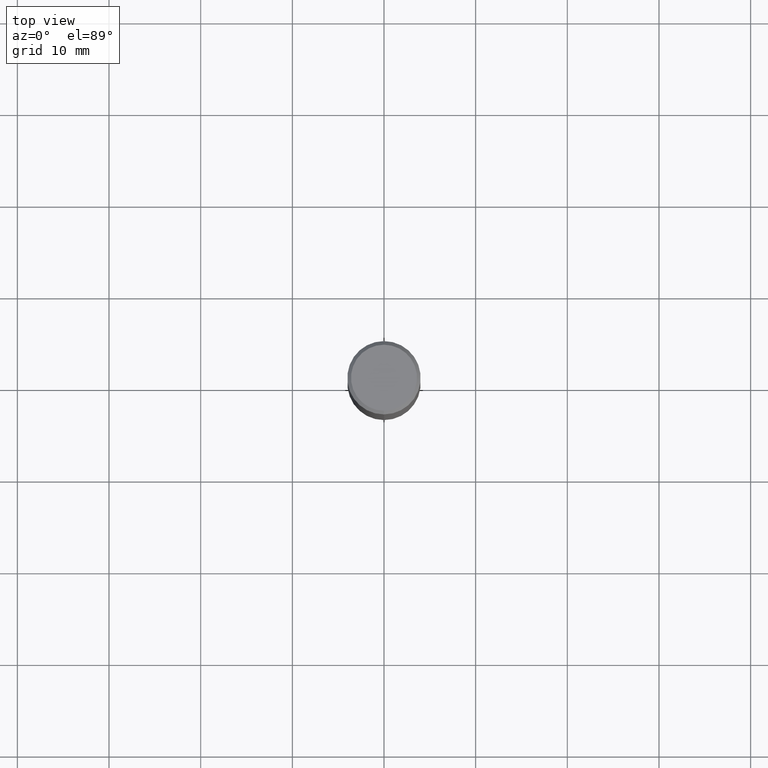
[diagram: clean part render]
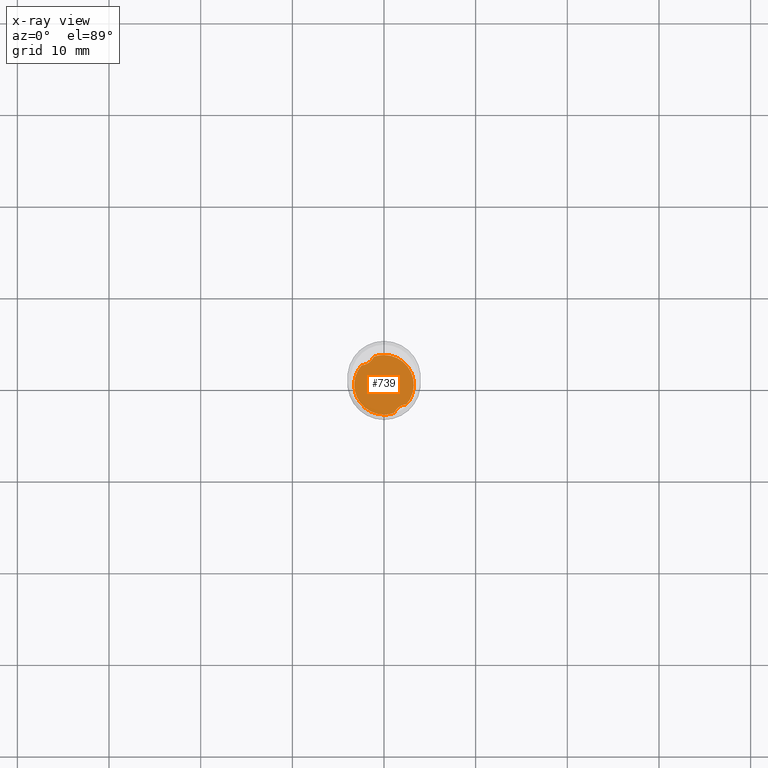
[diagram: x-ray — body ghosted, one internal face saturated and labeled with its STEP entity id]
A machine part, top view, then the same camera in x-ray: the body is ghosted and one INTERNAL B-rep face — a face not visible from any outside direction — is saturated and labeled: STEP entity #739.
In plain terms, the highlighted planar face has unit normal (-0, 0, 1).
Its self-contained STEP definition (entity closure, byte-faithful):
#385=EDGE_CURVE('',#605,#447,#886,.T.);
#387=VERTEX_POINT('',#888);
#431=EDGE_CURVE('',#703,#447,#935,.T.);
#447=VERTEX_POINT('',#952);
#563=EDGE_CURVE('',#387,#703,#1082,.T.);
#583=EDGE_CURVE('',#691,#709,#1102,.T.);
#605=VERTEX_POINT('',#1126);
#625=EDGE_CURVE('',#605,#691,#1148,.T.);
#691=VERTEX_POINT('',#1218);
#703=VERTEX_POINT('',#1232);
#709=VERTEX_POINT('',#1239);
#715=EDGE_CURVE('',#387,#709,#1245,.T.);
#739=ADVANCED_FACE('',(#1273),#1274,.T.);
#886=B_SPLINE_CURVE_WITH_KNOTS('',3,(#1929,#1930,#1931,#1932,#1933,#1934,#1935,#1936,#1937,#1938,#1939,#1940),.UNSPECIFIED.,.F.,.F.,(4,2,2,2,2,4),(0.0,0.708309429827758,1.35442980023637,2.0041555943352,2.4191924216829,2.85253291478748),.UNSPECIFIED.);
#888=CARTESIAN_POINT('',(-1.10898202220434,3.05483369177891,-45.0));
#935=CIRCLE('',#2364,3.2499);
#952=CARTESIAN_POINT('',(2.46162340967798,-2.12185301067848,-45.0));
#1082=CIRCLE('',#4173,3.2499);
#1102=CIRCLE('',#4314,3.2499);
#1126=CARTESIAN_POINT('',(1.10898202220434,-3.05483369177891,-45.0));
#1148=CIRCLE('',#4480,3.2499);
#1218=CARTESIAN_POINT('',(4.04827718362566E-016,-3.2499,-45.0));
#1232=CARTESIAN_POINT('',(-4.04827718450915E-016,3.2499,-45.0));
#1239=CARTESIAN_POINT('',(-2.46162340967798,2.12185301067848,-45.0));
#1245=B_SPLINE_CURVE_WITH_KNOTS('',3,(#5024,#5025,#5026,#5027,#5028,#5029,#5030,#5031,#5032,#5033,#5034,#5035),.UNSPECIFIED.,.F.,.F.,(4,2,2,2,2,4),(0.0,0.708309429827778,1.35442980023637,2.00415559433519,2.41919242168295,2.85253291478763),.UNSPECIFIED.);
#1273=FACE_OUTER_BOUND('',#5228,.T.);
#1274=PLANE('',#5229);
#1929=CARTESIAN_POINT('',(1.01044437744879,-3.2999,-45.0));
#1930=CARTESIAN_POINT('',(1.08316479644907,-3.0752749013908,-45.0));
#1931=CARTESIAN_POINT('',(1.19533702106888,-2.86711369547355,-44.9999999999901));
#1932=CARTESIAN_POINT('',(1.48831420004522,-2.5249230553405,-44.9999999999901));
#1933=CARTESIAN_POINT('',(1.65720903689099,-2.39203537131601,-45.0000000000005));
#1934=CARTESIAN_POINT('',(2.04180455430837,-2.19794761758901,-45.0000000000005));
#1935=CARTESIAN_POINT('',(2.25085844575547,-2.14059354174826,-45.0000000000001));
#1936=CARTESIAN_POINT('',(2.60383883765352,-2.10919769240004,-45.0000000000001));
#1937=CARTESIAN_POINT('',(2.74231487331805,-2.11268758404704,-45.0));
#1938=CARTESIAN_POINT('',(3.02249634057726,-2.1486732399649,-45.0));
#1939=CARTESIAN_POINT('',(3.16332454025785,-2.1823350845086,-45.0));
#1940=CARTESIAN_POINT('',(3.2999,-2.22909752636837,-45.0));
#2364=AXIS2_PLACEMENT_3D('',#5401,#5402,#5403);
#4173=AXIS2_PLACEMENT_3D('',#5610,#5611,#5612);
#4314=AXIS2_PLACEMENT_3D('',#5613,#5614,#5615);
#4480=AXIS2_PLACEMENT_3D('',#5670,#5671,#5672);
#5024=CARTESIAN_POINT('',(-1.01044437744879,3.2999,-45.0));
#5025=CARTESIAN_POINT('',(-1.08316479644908,3.07527490139079,-45.0));
#5026=CARTESIAN_POINT('',(-1.19533702106888,2.86711369547354,-44.9999999999901));
#5027=CARTESIAN_POINT('',(-1.48831420004521,2.52492305534052,-44.9999999999901));
#5028=CARTESIAN_POINT('',(-1.65720903689098,2.39203537131602,-45.0000000000005));
#5029=CARTESIAN_POINT('',(-2.04180455430838,2.197947617589,-45.0000000000005));
#5030=CARTESIAN_POINT('',(-2.25085844575549,2.14059354174826,-45.0000000000001));
#5031=CARTESIAN_POINT('',(-2.60383883765353,2.10919769240004,-45.0000000000001));
#5032=CARTESIAN_POINT('',(-2.74231487331807,2.11268758404705,-45.0));
#5033=CARTESIAN_POINT('',(-3.02249634057725,2.1486732399649,-45.0));
#5034=CARTESIAN_POINT('',(-3.16332454025784,2.1823350845086,-45.0));
#5035=CARTESIAN_POINT('',(-3.2999,2.22909752636837,-45.0));
#5228=EDGE_LOOP('',(#5800,#5801,#5802,#5803,#5804,#5805));
#5229=AXIS2_PLACEMENT_3D('',#5806,#5807,#5808);
#5401=CARTESIAN_POINT('',(0.0,0.0,-45.0));
#5402=DIRECTION('',(0.0,0.0,-1.0));
#5403=DIRECTION('',(0.0,1.0,0.0));
#5610=CARTESIAN_POINT('',(0.0,0.0,-45.0));
#5611=DIRECTION('',(0.0,0.0,-1.0));
#5612=DIRECTION('',(0.0,1.0,0.0));
#5613=CARTESIAN_POINT('',(0.0,0.0,-45.0));
#5614=DIRECTION('',(0.0,0.0,-1.0));
#5615=DIRECTION('',(0.0,1.0,0.0));
#5670=CARTESIAN_POINT('',(0.0,0.0,-45.0));
#5671=DIRECTION('',(0.0,0.0,-1.0));
#5672=DIRECTION('',(0.0,1.0,0.0));
#5800=ORIENTED_EDGE('',*,*,#385,.T.);
#5801=ORIENTED_EDGE('',*,*,#431,.F.);
#5802=ORIENTED_EDGE('',*,*,#563,.F.);
#5803=ORIENTED_EDGE('',*,*,#715,.T.);
#5804=ORIENTED_EDGE('',*,*,#583,.F.);
#5805=ORIENTED_EDGE('',*,*,#625,.F.);
#5806=CARTESIAN_POINT('',(0.0,1.62495,-45.0));
#5807=DIRECTION('',(-0.0,0.0,1.0));
#5808=DIRECTION('',(0.0,-1.0,0.0));